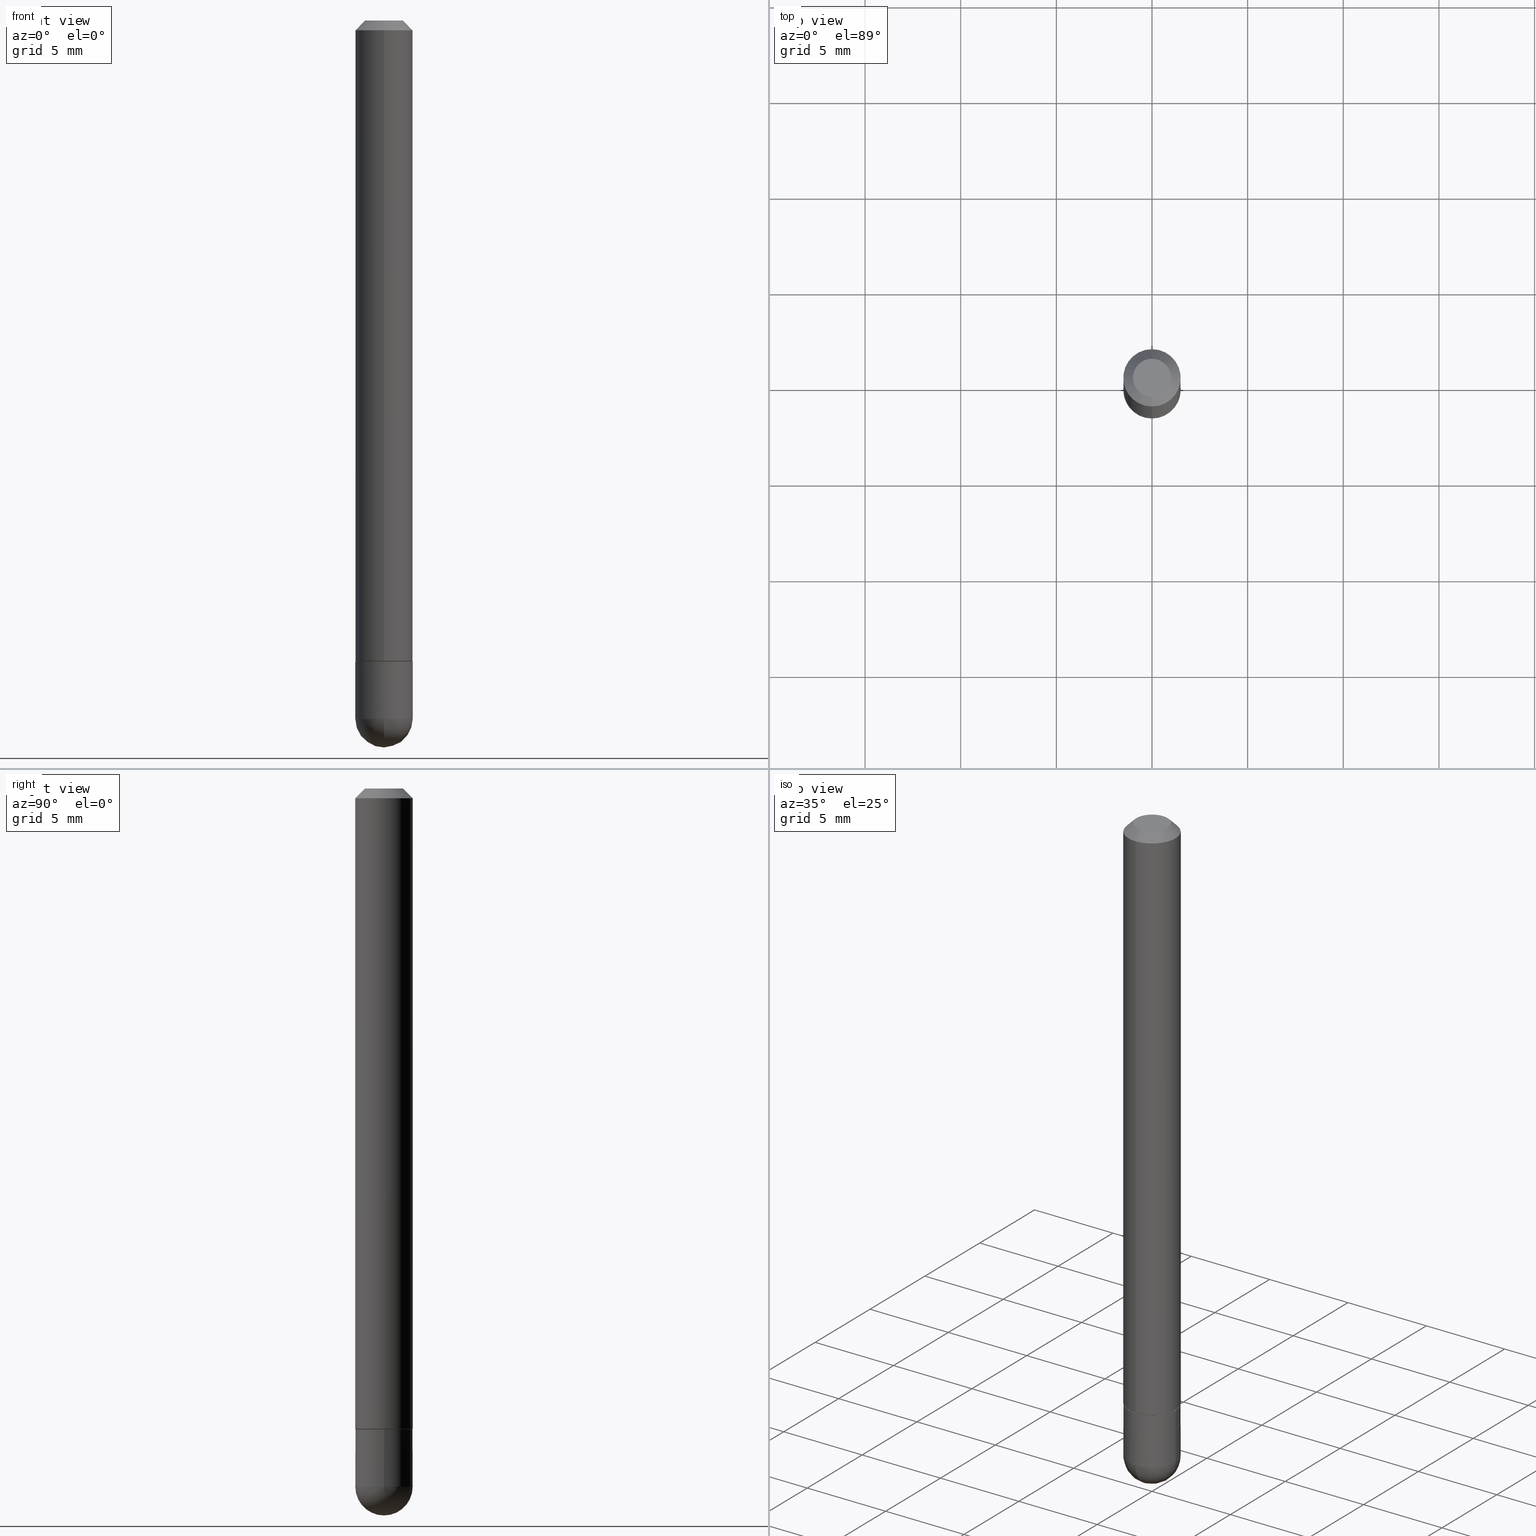
[diagram: canonical four-view strip — front | top / right | iso, engineering-drawing reading convention]
A machine part, canonical four-view strip (front | top / right | iso — engineering-drawing reading convention). The complete STEP part file that produces these views, byte-faithful:
ISO-10303-21;
HEADER;
FILE_DESCRIPTION (( 'STEP AP203' ),
    '1' );
FILE_NAME ('01939.STEP',
    '2024-02-21T16:34:35',
    ( '' ),
    ( '' ),
    'SwSTEP 2.0',
    'SolidWorks 2023',
    '' );
FILE_SCHEMA (( 'CONFIG_CONTROL_DESIGN' ));
ENDSEC;

DATA;
#1 = AXIS2_PLACEMENT_3D ( 'NONE', #118, #87, #245 ) ;
#2 = CARTESIAN_POINT ( 'NONE',  ( 3.223502653315129586E-29, -4.600536364074402946E-15, -1.317899999999999627 ) ) ;
#3 = APPROVAL ( #401, 'UNSPECIFIED' ) ;
#4 = ORIENTED_EDGE ( 'NONE', *, *, #90, .F. ) ;
#5 = ORIENTED_EDGE ( 'NONE', *, *, #369, .T. ) ;
#6 = SECURITY_CLASSIFICATION ( '', '', #231 ) ;
#7 = AXIS2_PLACEMENT_3D ( 'NONE', #25, #106, #163 ) ;
#8 = ORIENTED_EDGE ( 'NONE', *, *, #116, .T. ) ;
#9 = AXIS2_PLACEMENT_3D ( 'NONE', #361, #230, #228 ) ;
#10 = PERSON_AND_ORGANIZATION ( #368, #352 ) ;
#11 = EDGE_CURVE ( 'NONE', #39, #269, #92, .T. ) ;
#12 = VECTOR ( 'NONE', #29, 39.37007874015748143 ) ;
#13 = ORIENTED_EDGE ( 'NONE', *, *, #357, .F. ) ;
#14 = DIRECTION ( 'NONE',  ( -1.000000000000000000, 7.105427357601001070E-15, -4.926315508542082329E-29 ) ) ;
#15 = EDGE_LOOP ( 'NONE', ( #111, #48, #33, #13 ) ) ;
#16 = CARTESIAN_POINT ( 'NONE',  ( 0.05904999999999999832, -5.017258683917598472E-15, -1.318899999999999961 ) ) ;
#17 = CARTESIAN_POINT ( 'NONE',  ( -0.05905000000000001914, -4.391598512426043974E-15, -1.437049999999999939 ) ) ;
#18 = EDGE_CURVE ( 'NONE', #298, #287, #182, .T. ) ;
#19 = EDGE_LOOP ( 'NONE', ( #255, #138, #236, #188, #4 ) ) ;
#20 = PERSON_AND_ORGANIZATION ( #368, #352 ) ;
#21 = LINE ( 'NONE', #373, #313 ) ;
#22 = CIRCLE ( 'NONE', #399, 0.05905000000000000526 ) ;
#23 = EDGE_LOOP ( 'NONE', ( #156, #295 ) ) ;
#24 = PLANE ( 'NONE',  #254 ) ;
#25 = CARTESIAN_POINT ( 'NONE',  ( 3.514260947928350449E-29, -5.017433257984542594E-15, -1.437049999999999939 ) ) ;
#26 = DIRECTION ( 'NONE',  ( -6.982962677686265922E-15, -1.000000000000000000, 4.626330217890355926E-15 ) ) ;
#27 = CIRCLE ( 'NONE', #7, 0.05905000000000000526 ) ;
#28 = DIRECTION ( 'NONE',  ( -6.982962677686265922E-15, -1.000000000000000000, 4.626330217890355926E-15 ) ) ;
#29 = DIRECTION ( 'NONE',  ( -4.851104656540958753E-15, -0.7071067811865492381, -0.7071067811865457964 ) ) ;
#30 = CARTESIAN_POINT ( 'NONE',  ( -4.053609834396554286E-16, -0.05805000000000459792, -1.318899999999999739 ) ) ;
#31 = CC_DESIGN_DATE_AND_TIME_ASSIGNMENT ( #325, #68, ( #205 ) ) ;
#32 = CC_DESIGN_SECURITY_CLASSIFICATION ( #6, ( #329 ) ) ;
#33 = ORIENTED_EDGE ( 'NONE', *, *, #248, .F. ) ;
#34 = CONICAL_SURFACE ( 'NONE', #268, 0.05905000000000000526, 0.7853981633974472798 ) ;
#35 = CLOSED_SHELL ( 'NONE', ( #171, #222, #113, #127, #286 ) ) ;
#36 = COORDINATED_UNIVERSAL_TIME_OFFSET ( 5, 0, .BEHIND. ) ;
#37 = CC_DESIGN_PERSON_AND_ORGANIZATION_ASSIGNMENT ( #324, #259, ( #355 ) ) ;
#38 = CC_DESIGN_APPROVAL ( #3, ( #205 ) ) ;
#39 = VERTEX_POINT ( 'NONE', #30 ) ;
#40 = DIRECTION ( 'NONE',  ( -2.445468806185136597E-29, 3.491481338843145583E-15, 1.000000000000000000 ) ) ;
#41 = DIRECTION ( 'NONE',  ( -6.982962677686265922E-15, -1.000000000000000000, 4.706025828879006993E-15 ) ) ;
#42 = VERTEX_POINT ( 'NONE', #243 ) ;
#43 = DIRECTION ( 'NONE',  ( -7.105427357601001070E-15, -1.000000000000000000, 0.000000000000000000 ) ) ;
#44 = CALENDAR_DATE ( 2024, 21, 2 ) ;
#45 = ORIENTED_EDGE ( 'NONE', *, *, #185, .F. ) ;
#46 =( LENGTH_UNIT ( ) NAMED_UNIT ( * ) SI_UNIT ( $, .METRE. ) );
#47 = CARTESIAN_POINT ( 'NONE',  ( 3.225948592045926192E-29, -4.604027172454458377E-15, -1.318899999999999961 ) ) ;
#48 = ORIENTED_EDGE ( 'NONE', *, *, #291, .T. ) ;
#49 = DIRECTION ( 'NONE',  ( 1.000000000000000000, -6.982962677686265922E-15, 4.883557194083112340E-29 ) ) ;
#50 = ORIENTED_EDGE ( 'NONE', *, *, #145, .T. ) ;
#51 = ADVANCED_FACE ( 'NONE', ( #147 ), #149, .T. ) ;
#52 = CARTESIAN_POINT ( 'NONE',  ( 0.05905000000000001914, -5.223517944009757599E-15, -1.437049999999999939 ) ) ;
#53 = CARTESIAN_POINT ( 'NONE',  ( 4.124700581087703351E-16, 0.05804999999999539695, -1.318900000000000183 ) ) ;
#54 = DIRECTION ( 'NONE',  ( -1.000000000000000000, 6.982962677686265922E-15, -4.883557194083112340E-29 ) ) ;
#55 = VECTOR ( 'NONE', #223, 39.37007874015748143 ) ;
#56 = EDGE_CURVE ( 'NONE', #336, #404, #213, .T. ) ;
#57 = CARTESIAN_POINT ( 'NONE',  ( 0.000000000000000000, 0.000000000000000000, 0.000000000000000000 ) ) ;
#58 = APPROVAL ( #366, 'UNSPECIFIED' ) ;
#59 = DIRECTION ( 'NONE',  ( -6.982962677686265922E-15, -1.000000000000000000, 3.490808380054938555E-15 ) ) ;
#60 = CARTESIAN_POINT ( 'NONE',  ( 4.195754854663396902E-16, 0.05905000000000008159, -2.061322348422444104E-16 ) ) ;
#61 = AXIS2_PLACEMENT_3D ( 'NONE', #67, #237, #144 ) ;
#62 = AXIS2_PLACEMENT_3D ( 'NONE', #2, #316, #26 ) ;
#63 = EDGE_CURVE ( 'NONE', #298, #42, #244, .T. ) ;
#64 = AXIS2_PLACEMENT_3D ( 'NONE', #178, #152, #28 ) ;
#65 = ADVANCED_FACE ( 'NONE', ( #253 ), #181, .F. ) ;
#66 = ORIENTED_EDGE ( 'NONE', *, *, #85, .F. ) ;
#67 = CARTESIAN_POINT ( 'NONE',  ( 0.000000000000000000, 0.000000000000000000, 0.000000000000000000 ) ) ;
#68 = DATE_TIME_ROLE ( 'creation_date' ) ;
#69 = CARTESIAN_POINT ( 'NONE',  ( 3.183141170014464762E-29, -5.491615626124592102E-15, -1.437049999999999939 ) ) ;
#70 = CC_DESIGN_APPROVAL ( #58, ( #329 ) ) ;
#71 = CARTESIAN_POINT ( 'NONE',  ( 3.225948592045926192E-29, -4.604027172454458377E-15, -1.318899999999999961 ) ) ;
#72 = DIRECTION ( 'NONE',  ( -2.445938730795303738E-29, 3.490808380054938555E-15, 1.000000000000000000 ) ) ;
#73 = CYLINDRICAL_SURFACE ( 'NONE', #362, 0.05904999999999999832 ) ;
#74 = PERSON_AND_ORGANIZATION ( #368, #352 ) ;
#75 = ORIENTED_EDGE ( 'NONE', *, *, #155, .T. ) ;
#76 = APPROVAL_ROLE ( '' ) ;
#77 = DIRECTION ( 'NONE',  ( 1.000000000000000000, -6.982962677686266711E-15, 4.876176775795936353E-29 ) ) ;
#78 = EDGE_LOOP ( 'NONE', ( #66, #232, #249, #397 ) ) ;
#79 = CARTESIAN_POINT ( 'NONE',  ( 3.330070981488499955E-29, -5.694171829508798064E-15, -1.496100000000000207 ) ) ;
#80 = DIRECTION ( 'NONE',  ( -2.445468806185136877E-29, 3.491481338843145188E-15, 1.000000000000000000 ) ) ;
#81 = VERTEX_POINT ( 'NONE', #345 ) ;
#82 =( GEOMETRIC_REPRESENTATION_CONTEXT ( 3 ) GLOBAL_UNCERTAINTY_ASSIGNED_CONTEXT ( ( #317 ) ) GLOBAL_UNIT_ASSIGNED_CONTEXT ( ( #100, #199, #167 ) ) REPRESENTATION_CONTEXT ( 'NONE', 'WORKASPACE' ) );
#83 = DIRECTION ( 'NONE',  ( 6.982962677686265922E-15, 1.000000000000000000, -3.490808380054938555E-15 ) ) ;
#84 = AXIS2_PLACEMENT_3D ( 'NONE', #312, #126, #346 ) ;
#85 = EDGE_CURVE ( 'NONE', #269, #298, #412, .T. ) ;
#86 = DIRECTION ( 'NONE',  ( 1.000000000000000000, -6.982962677686266711E-15, 4.876176775795936353E-29 ) ) ;
#87 = DIRECTION ( 'NONE',  ( -2.445938730795303738E-29, 3.490808380054938555E-15, 1.000000000000000000 ) ) ;
#88 = CARTESIAN_POINT ( 'NONE',  ( 3.183141170014464762E-29, -5.491615626124592102E-15, -1.437049999999999939 ) ) ;
#89 = CARTESIAN_POINT ( 'NONE',  ( 4.123439461173745257E-16, 0.05904999999999994281, -0.02000000000000022593 ) ) ;
#90 = EDGE_CURVE ( 'NONE', #128, #364, #119, .T. ) ;
#91 = AXIS2_PLACEMENT_3D ( 'NONE', #380, #93, #247 ) ;
#92 = CIRCLE ( 'NONE', #321, 0.05804999999999999744 ) ;
#93 = DIRECTION ( 'NONE',  ( -2.445938730795303738E-29, 3.490808380054938555E-15, 1.000000000000000000 ) ) ;
#94 = SPHERICAL_SURFACE ( 'NONE', #377, 0.05905000000000025506 ) ;
#95 = EDGE_CURVE ( 'NONE', #404, #287, #132, .T. ) ;
#96 = LOCAL_TIME ( 11, 34, 35.00000000000000000, #335 ) ;
#97 = ORIENTED_EDGE ( 'NONE', *, *, #220, .F. ) ;
#98 = APPROVAL ( #110, 'UNSPECIFIED' ) ;
#99 = CIRCLE ( 'NONE', #293, 0.05904999999999999832 ) ;
#100 =( CONVERSION_BASED_UNIT ( 'INCH', #139 ) LENGTH_UNIT ( ) NAMED_UNIT ( #387 ) );
#101 = DIRECTION ( 'NONE',  ( -6.982962677686265133E-15, -1.000000000000000000, 3.490808380054938161E-15 ) ) ;
#102 = CARTESIAN_POINT ( 'NONE',  ( 3.225948592045926192E-29, -4.604027172454458377E-15, -1.318899999999999961 ) ) ;
#103 = PERSON_AND_ORGANIZATION_ROLE ( 'design_supplier' ) ;
#104 = ORIENTED_EDGE ( 'NONE', *, *, #258, .F. ) ;
#105 = DIRECTION ( 'NONE',  ( 6.982962677686265922E-15, 1.000000000000000000, -3.469747663417777002E-15 ) ) ;
#106 = DIRECTION ( 'NONE',  ( -2.445468806185136597E-29, 3.491481338843145583E-15, 1.000000000000000000 ) ) ;
#107 = AXIS2_PLACEMENT_3D ( 'NONE', #112, #40, #161 ) ;
#108 = DIRECTION ( 'NONE',  ( -6.982962677686265922E-15, -1.000000000000000000, 4.706025828879006993E-15 ) ) ;
#109 = CARTESIAN_POINT ( 'NONE',  ( 4.160227717875716280E-16, 0.05804999999999539695, -1.318900000000000183 ) ) ;
#110 = APPROVAL_STATUS ( 'not_yet_approved' ) ;
#111 = ORIENTED_EDGE ( 'NONE', *, *, #229, .F. ) ;
#112 = CARTESIAN_POINT ( 'NONE',  ( 3.514260947928350449E-29, -5.017433257984542594E-15, -1.437049999999999939 ) ) ;
#113 = ADVANCED_FACE ( 'NONE', ( #120 ), #94, .T. ) ;
#114 = EDGE_LOOP ( 'NONE', ( #334, #143, #343, #45 ) ) ;
#115 = CARTESIAN_POINT ( 'NONE',  ( 4.891877461590611925E-31, -6.981616760109884161E-17, -0.02000000000000002123 ) ) ;
#116 = EDGE_CURVE ( 'NONE', #81, #287, #221, .T. ) ;
#117 = DIRECTION ( 'NONE',  ( 1.000000000000000000, -6.982962677686273021E-15, 0.000000000000000000 ) ) ;
#118 = CARTESIAN_POINT ( 'NONE',  ( 0.000000000000000000, 0.000000000000000000, 0.000000000000000000 ) ) ;
#119 = CIRCLE ( 'NONE', #84, 0.05904999999999999832 ) ;
#120 = FACE_OUTER_BOUND ( 'NONE', #309, .T. ) ;
#121 = CARTESIAN_POINT ( 'NONE',  ( -0.05904999999999999832, 4.195754854663391478E-16, -2.904631170795521892E-30 ) ) ;
#122 = EDGE_CURVE ( 'NONE', #42, #298, #180, .T. ) ;
#123 = DIRECTION ( 'NONE',  ( -2.445468806185136597E-29, 3.491481338843145583E-15, 1.000000000000000000 ) ) ;
#124 = MANIFOLD_SOLID_BREP ( 'Body-Move/Copy2[1]', #35 ) ;
#125 = APPLICATION_CONTEXT ( 'configuration controlled 3d designs of mechanical parts and assemblies' ) ;
#126 = DIRECTION ( 'NONE',  ( -2.445468806185136597E-29, 3.491481338843145583E-15, 1.000000000000000000 ) ) ;
#127 = ADVANCED_FACE ( 'NONE', ( #151 ), #24, .F. ) ;
#128 = VERTEX_POINT ( 'NONE', #282 ) ;
#129 = CC_DESIGN_PERSON_AND_ORGANIZATION_ASSIGNMENT ( #10, #392, ( #205 ) ) ;
#130 = LOCAL_TIME ( 11, 34, 35.00000000000000000, #274 ) ;
#131 = CIRCLE ( 'NONE', #91, 0.05905000000000000526 ) ;
#132 = CIRCLE ( 'NONE', #353, 0.05905000000000000526 ) ;
#133 = ORIENTED_EDGE ( 'NONE', *, *, #388, .F. ) ;
#134 = DIRECTION ( 'NONE',  ( -6.982962677686265133E-15, -1.000000000000000000, 3.490808380054938161E-15 ) ) ;
#135 = CYLINDRICAL_SURFACE ( 'NONE', #1, 0.05905000000000008159 ) ;
#136 = ORIENTED_EDGE ( 'NONE', *, *, #18, .T. ) ;
#137 = CARTESIAN_POINT ( 'NONE',  ( -4.053609834396554286E-16, -0.05805000000000459792, -1.318899999999999739 ) ) ;
#138 = ORIENTED_EDGE ( 'NONE', *, *, #248, .T. ) ;
#139 = LENGTH_MEASURE_WITH_UNIT ( LENGTH_MEASURE( 0.02539999999999999897 ), #46 );
#140 = VECTOR ( 'NONE', #216, 39.37007874015748143 ) ;
#141 = FACE_OUTER_BOUND ( 'NONE', #15, .T. ) ;
#142 = APPLICATION_CONTEXT ( 'configuration controlled 3d designs of mechanical parts and assemblies' ) ;
#143 = ORIENTED_EDGE ( 'NONE', *, *, #63, .T. ) ;
#144 = DIRECTION ( 'NONE',  ( 1.000000000000000000, 0.000000000000000000, 0.000000000000000000 ) ) ;
#145 = EDGE_CURVE ( 'NONE', #364, #128, #99, .T. ) ;
#146 = DIRECTION ( 'NONE',  ( 1.000000000000000000, -6.982962677686272233E-15, 0.000000000000000000 ) ) ;
#147 = FACE_OUTER_BOUND ( 'NONE', #326, .T. ) ;
#148 = DIRECTION ( 'NONE',  ( 6.982962677686265922E-15, 1.000000000000000000, -3.469747663417777002E-15 ) ) ;
#149 = CYLINDRICAL_SURFACE ( 'NONE', #187, 0.05905000000000008159 ) ;
#150 = APPROVAL_PERSON_ORGANIZATION ( #263, #58, #168 ) ;
#151 = FACE_OUTER_BOUND ( 'NONE', #241, .T. ) ;
#152 = DIRECTION ( 'NONE',  ( -2.445938730795303738E-29, 3.490808380054938555E-15, 1.000000000000000000 ) ) ;
#153 = DIRECTION ( 'NONE',  ( -2.445938730795303738E-29, 3.490808380054938555E-15, 1.000000000000000000 ) ) ;
#154 = CONICAL_SURFACE ( 'NONE', #304, 0.05804999999999999744, 0.7853981633973630139 ) ;
#155 = EDGE_CURVE ( 'NONE', #202, #128, #281, .T. ) ;
#156 = ORIENTED_EDGE ( 'NONE', *, *, #11, .F. ) ;
#157 = AXIS2_PLACEMENT_3D ( 'NONE', #102, #169, #41 ) ;
#158 = DIRECTION ( 'NONE',  ( -4.937700262164126002E-15, -0.7071067811864847341, 0.7071067811866103003 ) ) ;
#159 = AXIS2_PLACEMENT_3D ( 'NONE', #115, #272, #148 ) ;
#160 = VERTEX_POINT ( 'NONE', #349 ) ;
#161 = DIRECTION ( 'NONE',  ( 1.000000000000000000, -6.982962677686272233E-15, 0.000000000000000000 ) ) ;
#162 = AXIS2_PLACEMENT_3D ( 'NONE', #315, #280, #285 ) ;
#163 = DIRECTION ( 'NONE',  ( 1.000000000000000000, -6.982962677686272233E-15, 0.000000000000000000 ) ) ;
#164 = EDGE_LOOP ( 'NONE', ( #225, #330, #371, #261 ) ) ;
#165 = DATE_AND_TIME ( #44, #267 ) ;
#166 = ORIENTED_EDGE ( 'NONE', *, *, #85, .T. ) ;
#167 =( NAMED_UNIT ( * ) SI_UNIT ( $, .STERADIAN. ) SOLID_ANGLE_UNIT ( ) );
#168 = APPROVAL_ROLE ( '' ) ;
#169 = DIRECTION ( 'NONE',  ( -2.445938730795303738E-29, 3.490808380054938555E-15, 1.000000000000000000 ) ) ;
#170 = ADVANCED_BREP_SHAPE_REPRESENTATION ( '01939', ( #124, #403, #61 ), #82 ) ;
#171 = ADVANCED_FACE ( 'NONE', ( #350 ), #378, .T. ) ;
#172 = AXIS2_PLACEMENT_3D ( 'NONE', #296, #14, #43 ) ;
#173 = ORIENTED_EDGE ( 'NONE', *, *, #122, .T. ) ;
#174 = CARTESIAN_POINT ( 'NONE',  ( 0.05904999999999999832, -4.123439461173740327E-16, 2.879382386107500220E-30 ) ) ;
#175 = APPROVAL_ROLE ( '' ) ;
#176 = ORIENTED_EDGE ( 'NONE', *, *, #122, .F. ) ;
#177 = DIRECTION ( 'NONE',  ( 6.982962677686266711E-15, 1.000000000000000000, 0.000000000000000000 ) ) ;
#178 = CARTESIAN_POINT ( 'NONE',  ( 3.223502653315129586E-29, -4.600536364074402946E-15, -1.317899999999999627 ) ) ;
#179 = DIRECTION ( 'NONE',  ( 6.982962677686265922E-15, 1.000000000000000000, -4.626330217890349615E-15 ) ) ;
#180 = CIRCLE ( 'NONE', #64, 0.05905000000000017180 ) ;
#181 = PLANE ( 'NONE',  #162 ) ;
#182 = LINE ( 'NONE', #60, #140 ) ;
#183 = EDGE_LOOP ( 'NONE', ( #300, #354, #8, #239 ) ) ;
#184 = DIRECTION ( 'NONE',  ( -1.000000000000000000, 6.982962677686265922E-15, -4.876176775795935793E-29 ) ) ;
#185 = EDGE_CURVE ( 'NONE', #287, #404, #131, .T. ) ;
#186 = CIRCLE ( 'NONE', #383, 0.05804999999999999744 ) ;
#187 = AXIS2_PLACEMENT_3D ( 'NONE', #351, #153, #59 ) ;
#188 = ORIENTED_EDGE ( 'NONE', *, *, #220, .T. ) ;
#189 = ORIENTED_EDGE ( 'NONE', *, *, #229, .T. ) ;
#190 = ADVANCED_FACE ( 'NONE', ( #359 ), #311, .F. ) ;
#191 = AXIS2_PLACEMENT_3D ( 'NONE', #242, #338, #83 ) ;
#192 = EDGE_CURVE ( 'NONE', #42, #404, #21, .T. ) ;
#193 = VERTEX_POINT ( 'NONE', #52 ) ;
#194 = MECHANICAL_CONTEXT ( 'NONE', #125, 'mechanical' ) ;
#195 = DIRECTION ( 'NONE',  ( -6.982962677686265922E-15, -1.000000000000000000, 4.706025828879006993E-15 ) ) ;
#196 = AXIS2_PLACEMENT_3D ( 'NONE', #331, #72, #134 ) ;
#197 = PERSON_AND_ORGANIZATION ( #368, #352 ) ;
#198 = DIRECTION ( 'NONE',  ( -2.445938730795303738E-29, 3.490808380054938555E-15, 1.000000000000000000 ) ) ;
#199 =( NAMED_UNIT ( * ) PLANE_ANGLE_UNIT ( ) SI_UNIT ( $, .RADIAN. ) );
#200 = CARTESIAN_POINT ( 'NONE',  ( 4.123439461173745257E-16, 0.05904999999999994281, -0.02000000000000022593 ) ) ;
#201 = COORDINATED_UNIVERSAL_TIME_OFFSET ( 5, 0, .BEHIND. ) ;
#202 = VERTEX_POINT ( 'NONE', #17 ) ;
#203 = DATE_AND_TIME ( #292, #224 ) ;
#204 = FACE_OUTER_BOUND ( 'NONE', #360, .T. ) ;
#205 = PRODUCT_DEFINITION ( 'UNKNOWN', '', #329, #276 ) ;
#206 = EDGE_LOOP ( 'NONE', ( #305, #75, #393, #97, #375 ) ) ;
#207 = FACE_OUTER_BOUND ( 'NONE', #164, .T. ) ;
#208 = DIRECTION ( 'NONE',  ( -1.000000000000000000, 6.982962677686265922E-15, -4.883557194083112340E-29 ) ) ;
#209 = CC_DESIGN_APPROVAL ( #98, ( #6 ) ) ;
#210 = AXIS2_PLACEMENT_3D ( 'NONE', #299, #394, #101 ) ;
#211 = VERTEX_POINT ( 'NONE', #212 ) ;
#212 = CARTESIAN_POINT ( 'NONE',  ( 4.123439461174083974E-16, 0.05904999999999487742, -1.437050000000000161 ) ) ;
#213 = LINE ( 'NONE', #384, #12 ) ;
#214 = CARTESIAN_POINT ( 'NONE',  ( 4.195754854663563056E-16, 0.05904999999999557131, -1.317899999999999849 ) ) ;
#215 = SHAPE_DEFINITION_REPRESENTATION ( #288, #170 ) ;
#216 = DIRECTION ( 'NONE',  ( -2.445938730795303738E-29, 3.490808380054938555E-15, 1.000000000000000000 ) ) ;
#217 = CARTESIAN_POINT ( 'NONE',  ( 4.123439461174062774E-16, 0.05904999999999539784, -1.318900000000000183 ) ) ;
#218 = CIRCLE ( 'NONE', #172, 0.05905000000000025506 ) ;
#219 = CLOSED_SHELL ( 'NONE', ( #290, #51, #385, #273, #297, #283, #65, #190 ) ) ;
#220 = EDGE_CURVE ( 'NONE', #193, #364, #277, .T. ) ;
#221 = LINE ( 'NONE', #89, #55 ) ;
#222 = ADVANCED_FACE ( 'NONE', ( #141 ), #266, .T. ) ;
#223 = DIRECTION ( 'NONE',  ( 4.937700262164542520E-15, 0.7071067811865443531, -0.7071067811865506814 ) ) ;
#224 = LOCAL_TIME ( 11, 34, 35.00000000000000000, #36 ) ;
#225 = ORIENTED_EDGE ( 'NONE', *, *, #342, .F. ) ;
#226 = ORIENTED_EDGE ( 'NONE', *, *, #90, .T. ) ;
#227 = CIRCLE ( 'NONE', #107, 0.05905000000000000526 ) ;
#228 = DIRECTION ( 'NONE',  ( 1.000000000000000000, -6.982962677686272233E-15, 0.000000000000000000 ) ) ;
#229 = EDGE_CURVE ( 'NONE', #318, #211, #376, .T. ) ;
#230 = DIRECTION ( 'NONE',  ( -2.445468806185136597E-29, 3.491481338843145583E-15, 1.000000000000000000 ) ) ;
#231 = SECURITY_CLASSIFICATION_LEVEL ( 'unclassified' ) ;
#232 = ORIENTED_EDGE ( 'NONE', *, *, #306, .T. ) ;
#233 = CARTESIAN_POINT ( 'NONE',  ( -4.051124067684084738E-16, -0.05905000000000007465, -0.01999999999999981654 ) ) ;
#234 = DIRECTION ( 'NONE',  ( -2.445938730795303738E-29, 3.490808380054938555E-15, 1.000000000000000000 ) ) ;
#235 = CONICAL_SURFACE ( 'NONE', #157, 0.05804999999999999744, 0.7853981633973630139 ) ;
#236 = ORIENTED_EDGE ( 'NONE', *, *, #358, .T. ) ;
#237 = DIRECTION ( 'NONE',  ( 0.000000000000000000, 0.000000000000000000, 1.000000000000000000 ) ) ;
#238 = DIRECTION ( 'NONE',  ( -2.445938730795303738E-29, 3.490808380054938555E-15, 1.000000000000000000 ) ) ;
#239 = ORIENTED_EDGE ( 'NONE', *, *, #185, .T. ) ;
#240 = LINE ( 'NONE', #137, #251 ) ;
#241 = EDGE_LOOP ( 'NONE', ( #50, #226 ) ) ;
#242 = CARTESIAN_POINT ( 'NONE',  ( 2.726846925636489647E-16, 0.03905000000000004301, -1.427319754966358813E-16 ) ) ;
#243 = CARTESIAN_POINT ( 'NONE',  ( -4.123439461173429713E-16, -0.05905000000000477228, -1.317899999999999405 ) ) ;
#244 = CIRCLE ( 'NONE', #62, 0.05905000000000017180 ) ;
#245 = DIRECTION ( 'NONE',  ( -6.982962677686265922E-15, -1.000000000000000000, 3.490808380054938555E-15 ) ) ;
#246 = DIRECTION ( 'NONE',  ( -2.445468806185136877E-29, 3.491481338843145188E-15, 1.000000000000000000 ) ) ;
#247 = DIRECTION ( 'NONE',  ( -6.982962677686265922E-15, -1.000000000000000000, 3.469747663417777002E-15 ) ) ;
#248 = EDGE_CURVE ( 'NONE', #202, #160, #22, .T. ) ;
#249 = ORIENTED_EDGE ( 'NONE', *, *, #388, .T. ) ;
#250 = DIRECTION ( 'NONE',  ( -2.445468806185136597E-29, 3.491481338843145583E-15, 1.000000000000000000 ) ) ;
#251 = VECTOR ( 'NONE', #158, 39.37007874015748143 ) ;
#252 = CC_DESIGN_DATE_AND_TIME_ASSIGNMENT ( #165, #256, ( #6 ) ) ;
#253 = FACE_OUTER_BOUND ( 'NONE', #23, .T. ) ;
#254 = AXIS2_PLACEMENT_3D ( 'NONE', #217, #382, #184 ) ;
#255 = ORIENTED_EDGE ( 'NONE', *, *, #155, .F. ) ;
#256 = DATE_TIME_ROLE ( 'classification_date' ) ;
#257 = AXIS2_PLACEMENT_3D ( 'NONE', #69, #208, #344 ) ;
#258 = EDGE_CURVE ( 'NONE', #193, #211, #27, .T. ) ;
#259 = PERSON_AND_ORGANIZATION_ROLE ( 'design_owner' ) ;
#260 = DATE_AND_TIME ( #391, #348 ) ;
#261 = ORIENTED_EDGE ( 'NONE', *, *, #116, .F. ) ;
#262 = CARTESIAN_POINT ( 'NONE',  ( 4.891877461590611925E-31, -6.981616760109884161E-17, -0.02000000000000002123 ) ) ;
#263 = PERSON_AND_ORGANIZATION ( #368, #352 ) ;
#264 = CARTESIAN_POINT ( 'NONE',  ( 3.514260947928350449E-29, -5.017433257984542594E-15, -1.437049999999999939 ) ) ;
#265 = ORIENTED_EDGE ( 'NONE', *, *, #95, .F. ) ;
#266 = SPHERICAL_SURFACE ( 'NONE', #257, 0.05905000000000025506 ) ;
#267 = LOCAL_TIME ( 11, 34, 35.00000000000000000, #201 ) ;
#268 = AXIS2_PLACEMENT_3D ( 'NONE', #262, #301, #105 ) ;
#269 = VERTEX_POINT ( 'NONE', #109 ) ;
#270 = FACE_OUTER_BOUND ( 'NONE', #183, .T. ) ;
#271 = ORIENTED_EDGE ( 'NONE', *, *, #358, .F. ) ;
#272 = DIRECTION ( 'NONE',  ( 2.445938730795303738E-29, -3.490808380054938555E-15, -1.000000000000000000 ) ) ;
#273 = ADVANCED_FACE ( 'NONE', ( #270 ), #347, .T. ) ;
#274 = COORDINATED_UNIVERSAL_TIME_OFFSET ( 5, 0, .BEHIND. ) ;
#275 = DIRECTION ( 'NONE',  ( -6.982962677686265922E-15, -1.000000000000000000, 3.469747663417777002E-15 ) ) ;
#276 = DESIGN_CONTEXT ( 'detailed design', #142, 'design' ) ;
#277 = LINE ( 'NONE', #174, #278 ) ;
#278 = VECTOR ( 'NONE', #80, 39.37007874015748143 ) ;
#279 = DATE_AND_TIME ( #308, #130 ) ;
#280 = DIRECTION ( 'NONE',  ( -2.445938730795303458E-29, 3.490808380054938555E-15, 1.000000000000000000 ) ) ;
#281 = LINE ( 'NONE', #121, #341 ) ;
#282 = CARTESIAN_POINT ( 'NONE',  ( -0.05904999999999999832, -4.391598512426043974E-15, -1.318899999999999961 ) ) ;
#283 = ADVANCED_FACE ( 'NONE', ( #405 ), #154, .T. ) ;
#284 = ORIENTED_EDGE ( 'NONE', *, *, #192, .F. ) ;
#285 = DIRECTION ( 'NONE',  ( -6.982962677686265922E-15, -1.000000000000000000, 3.490808380054938555E-15 ) ) ;
#286 = ADVANCED_FACE ( 'NONE', ( #367 ), #73, .T. ) ;
#287 = VERTEX_POINT ( 'NONE', #200 ) ;
#288 = PRODUCT_DEFINITION_SHAPE ( 'NONE', 'NONE',  #205 ) ;
#289 = CIRCLE ( 'NONE', #196, 0.03905000000000004301 ) ;
#290 = ADVANCED_FACE ( 'NONE', ( #204 ), #235, .T. ) ;
#291 = EDGE_CURVE ( 'NONE', #318, #160, #218, .T. ) ;
#292 = CALENDAR_DATE ( 2024, 21, 2 ) ;
#293 = AXIS2_PLACEMENT_3D ( 'NONE', #407, #123, #117 ) ;
#294 = VECTOR ( 'NONE', #314, 39.37007874015748143 ) ;
#295 = ORIENTED_EDGE ( 'NONE', *, *, #306, .F. ) ;
#296 = CARTESIAN_POINT ( 'NONE',  ( 3.183141170014464762E-29, -5.491615626124592102E-15, -1.437049999999999939 ) ) ;
#297 = ADVANCED_FACE ( 'NONE', ( #303 ), #135, .T. ) ;
#298 = VERTEX_POINT ( 'NONE', #214 ) ;
#299 = CARTESIAN_POINT ( 'NONE',  ( 3.138583699066647381E-46, -4.479341260785891891E-32, -1.283181651098074832E-17 ) ) ;
#300 = ORIENTED_EDGE ( 'NONE', *, *, #56, .F. ) ;
#301 = DIRECTION ( 'NONE',  ( 2.445938730795303738E-29, -3.490808380054938555E-15, -1.000000000000000000 ) ) ;
#302 = COORDINATED_UNIVERSAL_TIME_OFFSET ( 5, 0, .BEHIND. ) ;
#303 = FACE_OUTER_BOUND ( 'NONE', #114, .T. ) ;
#304 = AXIS2_PLACEMENT_3D ( 'NONE', #47, #238, #195 ) ;
#305 = ORIENTED_EDGE ( 'NONE', *, *, #357, .T. ) ;
#306 = EDGE_CURVE ( 'NONE', #269, #39, #186, .T. ) ;
#307 = DIRECTION ( 'NONE',  ( -2.445468806185136597E-29, 3.491481338843145583E-15, 1.000000000000000000 ) ) ;
#308 = CALENDAR_DATE ( 2024, 21, 2 ) ;
#309 = EDGE_LOOP ( 'NONE', ( #319, #189, #104, #271 ) ) ;
#310 = CC_DESIGN_PERSON_AND_ORGANIZATION_ASSIGNMENT ( #396, #323, ( #329 ) ) ;
#311 = PLANE ( 'NONE',  #191 ) ;
#312 = CARTESIAN_POINT ( 'NONE',  ( 3.225328808477576615E-29, -4.604914737800224341E-15, -1.318899999999999961 ) ) ;
#313 = VECTOR ( 'NONE', #234, 39.37007874015748143 ) ;
#314 = DIRECTION ( 'NONE',  ( 5.024295867787633249E-15, 0.7071067811864896191, 0.7071067811866054154 ) ) ;
#315 = CARTESIAN_POINT ( 'NONE',  ( 3.225948592045926192E-29, -4.604027172454458377E-15, -1.318899999999999961 ) ) ;
#316 = DIRECTION ( 'NONE',  ( -2.445938730795303738E-29, 3.490808380054938555E-15, 1.000000000000000000 ) ) ;
#317 = UNCERTAINTY_MEASURE_WITH_UNIT (LENGTH_MEASURE( 1.000000000000000082E-05 ), #100, 'distance_accuracy_value', 'NONE');
#318 = VERTEX_POINT ( 'NONE', #79 ) ;
#319 = ORIENTED_EDGE ( 'NONE', *, *, #291, .F. ) ;
#320 = AXIS2_PLACEMENT_3D ( 'NONE', #395, #49, #177 ) ;
#321 = AXIS2_PLACEMENT_3D ( 'NONE', #71, #198, #108 ) ;
#322 = CC_DESIGN_PERSON_AND_ORGANIZATION_ASSIGNMENT ( #197, #333, ( #6 ) ) ;
#323 = PERSON_AND_ORGANIZATION_ROLE ( 'creator' ) ;
#324 = PERSON_AND_ORGANIZATION ( #368, #352 ) ;
#325 = DATE_AND_TIME ( #381, #96 ) ;
#326 = EDGE_LOOP ( 'NONE', ( #173, #136, #265, #284 ) ) ;
#327 = APPROVAL_DATE_TIME ( #203, #3 ) ;
#328 = CARTESIAN_POINT ( 'NONE',  ( 0.000000000000000000, 0.000000000000000000, 0.000000000000000000 ) ) ;
#329 = PRODUCT_DEFINITION_FORMATION_WITH_SPECIFIED_SOURCE ( 'ANY', '', #355, .NOT_KNOWN. ) ;
#330 = ORIENTED_EDGE ( 'NONE', *, *, #56, .T. ) ;
#331 = CARTESIAN_POINT ( 'NONE',  ( 3.138583699066647381E-46, -4.479341260785891891E-32, -1.283181651098074832E-17 ) ) ;
#332 = DIRECTION ( 'NONE',  ( -2.445468806185136597E-29, 3.491481338843145583E-15, 1.000000000000000000 ) ) ;
#333 = PERSON_AND_ORGANIZATION_ROLE ( 'classification_officer' ) ;
#334 = ORIENTED_EDGE ( 'NONE', *, *, #18, .F. ) ;
#335 = COORDINATED_UNIVERSAL_TIME_OFFSET ( 5, 0, .BEHIND. ) ;
#336 = VERTEX_POINT ( 'NONE', #372 ) ;
#337 = DIRECTION ( 'NONE',  ( -6.982962677686265922E-15, -1.000000000000000000, 4.706025828879006993E-15 ) ) ;
#338 = DIRECTION ( 'NONE',  ( 2.445938730795303458E-29, -3.490808380054938555E-15, -1.000000000000000000 ) ) ;
#339 = APPROVAL_PERSON_ORGANIZATION ( #406, #98, #175 ) ;
#340 = CIRCLE ( 'NONE', #9, 0.05905000000000000526 ) ;
#341 = VECTOR ( 'NONE', #246, 39.37007874015748143 ) ;
#342 = EDGE_CURVE ( 'NONE', #336, #81, #386, .T. ) ;
#343 = ORIENTED_EDGE ( 'NONE', *, *, #192, .T. ) ;
#344 = DIRECTION ( 'NONE',  ( 6.982962677686265922E-15, 1.000000000000000000, -4.626330217890349615E-15 ) ) ;
#345 = CARTESIAN_POINT ( 'NONE',  ( 3.425143193405117699E-16, 0.03905000000000004301, -1.491478837521262555E-16 ) ) ;
#346 = DIRECTION ( 'NONE',  ( 1.000000000000000000, -6.982962677686273021E-15, 0.000000000000000000 ) ) ;
#347 = CONICAL_SURFACE ( 'NONE', #159, 0.05905000000000000526, 0.7853981633974472798 ) ;
#348 = LOCAL_TIME ( 11, 34, 35.00000000000000000, #302 ) ;
#349 = CARTESIAN_POINT ( 'NONE',  ( -4.195754854663065087E-16, -0.05905000000000538291, -1.437049999999999716 ) ) ;
#350 = FACE_OUTER_BOUND ( 'NONE', #206, .T. ) ;
#351 = CARTESIAN_POINT ( 'NONE',  ( 0.000000000000000000, 0.000000000000000000, 0.000000000000000000 ) ) ;
#352 = ORGANIZATION ( 'UNSPECIFIED', 'UNSPECIFIED', '' ) ;
#353 = AXIS2_PLACEMENT_3D ( 'NONE', #411, #410, #275 ) ;
#354 = ORIENTED_EDGE ( 'NONE', *, *, #369, .F. ) ;
#355 = PRODUCT ( '01939', '01939', '', ( #194 ) ) ;
#356 = ORIENTED_EDGE ( 'NONE', *, *, #11, .T. ) ;
#357 = EDGE_CURVE ( 'NONE', #211, #202, #340, .T. ) ;
#358 = EDGE_CURVE ( 'NONE', #160, #193, #227, .T. ) ;
#359 = FACE_OUTER_BOUND ( 'NONE', #400, .T. ) ;
#360 = EDGE_LOOP ( 'NONE', ( #356, #166, #176, #133 ) ) ;
#361 = CARTESIAN_POINT ( 'NONE',  ( 3.514260947928350449E-29, -5.017433257984542594E-15, -1.437049999999999939 ) ) ;
#362 = AXIS2_PLACEMENT_3D ( 'NONE', #328, #332, #77 ) ;
#363 = APPROVAL_DATE_TIME ( #260, #58 ) ;
#364 = VERTEX_POINT ( 'NONE', #16 ) ;
#365 = APPLICATION_PROTOCOL_DEFINITION ( 'international standard', 'config_control_design', 1994, #142 ) ;
#366 = APPROVAL_STATUS ( 'not_yet_approved' ) ;
#367 = FACE_OUTER_BOUND ( 'NONE', #19, .T. ) ;
#368 = PERSON ( 'UNSPECIFIED', 'UNSPECIFIED', 'UNSPECIFIED', ('UNSPECIFIED'), ('UNSPECIFIED'), ('UNSPECIFIED') ) ;
#369 = EDGE_CURVE ( 'NONE', #81, #336, #289, .T. ) ;
#370 = APPROVAL_DATE_TIME ( #279, #98 ) ;
#371 = ORIENTED_EDGE ( 'NONE', *, *, #95, .T. ) ;
#372 = CARTESIAN_POINT ( 'NONE',  ( -3.365074267906934875E-16, -0.03905000000000004301, 1.234842507301647588E-16 ) ) ;
#373 = CARTESIAN_POINT ( 'NONE',  ( -4.123439461173745750E-16, -0.05905000000000008159, 2.061322348422444104E-16 ) ) ;
#374 = PRODUCT_RELATED_PRODUCT_CATEGORY ( 'detail', '', ( #355 ) ) ;
#375 = ORIENTED_EDGE ( 'NONE', *, *, #258, .T. ) ;
#376 = CIRCLE ( 'NONE', #320, 0.05905000000000025506 ) ;
#377 = AXIS2_PLACEMENT_3D ( 'NONE', #88, #54, #179 ) ;
#378 = CYLINDRICAL_SURFACE ( 'NONE', #390, 0.05904999999999999832 ) ;
#379 = CARTESIAN_POINT ( 'NONE',  ( 3.225948592045926192E-29, -4.604027172454458377E-15, -1.318899999999999961 ) ) ;
#380 = CARTESIAN_POINT ( 'NONE',  ( 4.891877461590611925E-31, -6.981616760109884161E-17, -0.02000000000000002123 ) ) ;
#381 = CALENDAR_DATE ( 2024, 21, 2 ) ;
#382 = DIRECTION ( 'NONE',  ( 2.438088387897960049E-29, -3.491481338843145188E-15, -1.000000000000000000 ) ) ;
#383 = AXIS2_PLACEMENT_3D ( 'NONE', #379, #408, #337 ) ;
#384 = CARTESIAN_POINT ( 'NONE',  ( -4.051124067684084738E-16, -0.05905000000000007465, -0.01999999999999981654 ) ) ;
#385 = ADVANCED_FACE ( 'NONE', ( #207 ), #34, .T. ) ;
#386 = CIRCLE ( 'NONE', #210, 0.03905000000000004301 ) ;
#387 = DIMENSIONAL_EXPONENTS ( 1.000000000000000000, 0.000000000000000000, 0.000000000000000000, 0.000000000000000000, 0.000000000000000000, 0.000000000000000000, 0.000000000000000000 ) ;
#388 = EDGE_CURVE ( 'NONE', #39, #42, #240, .T. ) ;
#389 = ORIENTED_EDGE ( 'NONE', *, *, #342, .T. ) ;
#390 = AXIS2_PLACEMENT_3D ( 'NONE', #57, #250, #86 ) ;
#391 = CALENDAR_DATE ( 2024, 21, 2 ) ;
#392 = PERSON_AND_ORGANIZATION_ROLE ( 'creator' ) ;
#393 = ORIENTED_EDGE ( 'NONE', *, *, #145, .F. ) ;
#394 = DIRECTION ( 'NONE',  ( -2.445938730795303738E-29, 3.490808380054938555E-15, 1.000000000000000000 ) ) ;
#395 = CARTESIAN_POINT ( 'NONE',  ( 3.183141170014464762E-29, -5.491615626124592102E-15, -1.437049999999999939 ) ) ;
#396 = PERSON_AND_ORGANIZATION ( #368, #352 ) ;
#397 = ORIENTED_EDGE ( 'NONE', *, *, #63, .F. ) ;
#398 = APPLICATION_PROTOCOL_DEFINITION ( 'international standard', 'config_control_design', 1994, #125 ) ;
#399 = AXIS2_PLACEMENT_3D ( 'NONE', #264, #307, #146 ) ;
#400 = EDGE_LOOP ( 'NONE', ( #5, #389 ) ) ;
#401 = APPROVAL_STATUS ( 'not_yet_approved' ) ;
#402 = CC_DESIGN_PERSON_AND_ORGANIZATION_ASSIGNMENT ( #74, #103, ( #329 ) ) ;
#403 = MANIFOLD_SOLID_BREP ( 'Body-Move/Copy2[2]', #219 ) ;
#404 = VERTEX_POINT ( 'NONE', #233 ) ;
#405 = FACE_OUTER_BOUND ( 'NONE', #78, .T. ) ;
#406 = PERSON_AND_ORGANIZATION ( #368, #352 ) ;
#407 = CARTESIAN_POINT ( 'NONE',  ( 3.225328808477576615E-29, -4.604914737800224341E-15, -1.318899999999999961 ) ) ;
#408 = DIRECTION ( 'NONE',  ( -2.445938730795303738E-29, 3.490808380054938555E-15, 1.000000000000000000 ) ) ;
#409 = APPROVAL_PERSON_ORGANIZATION ( #20, #3, #76 ) ;
#410 = DIRECTION ( 'NONE',  ( -2.445938730795303738E-29, 3.490808380054938555E-15, 1.000000000000000000 ) ) ;
#411 = CARTESIAN_POINT ( 'NONE',  ( 4.891877461590611925E-31, -6.981616760109884161E-17, -0.02000000000000002123 ) ) ;
#412 = LINE ( 'NONE', #53, #294 ) ;
ENDSEC;
END-ISO-10303-21;
